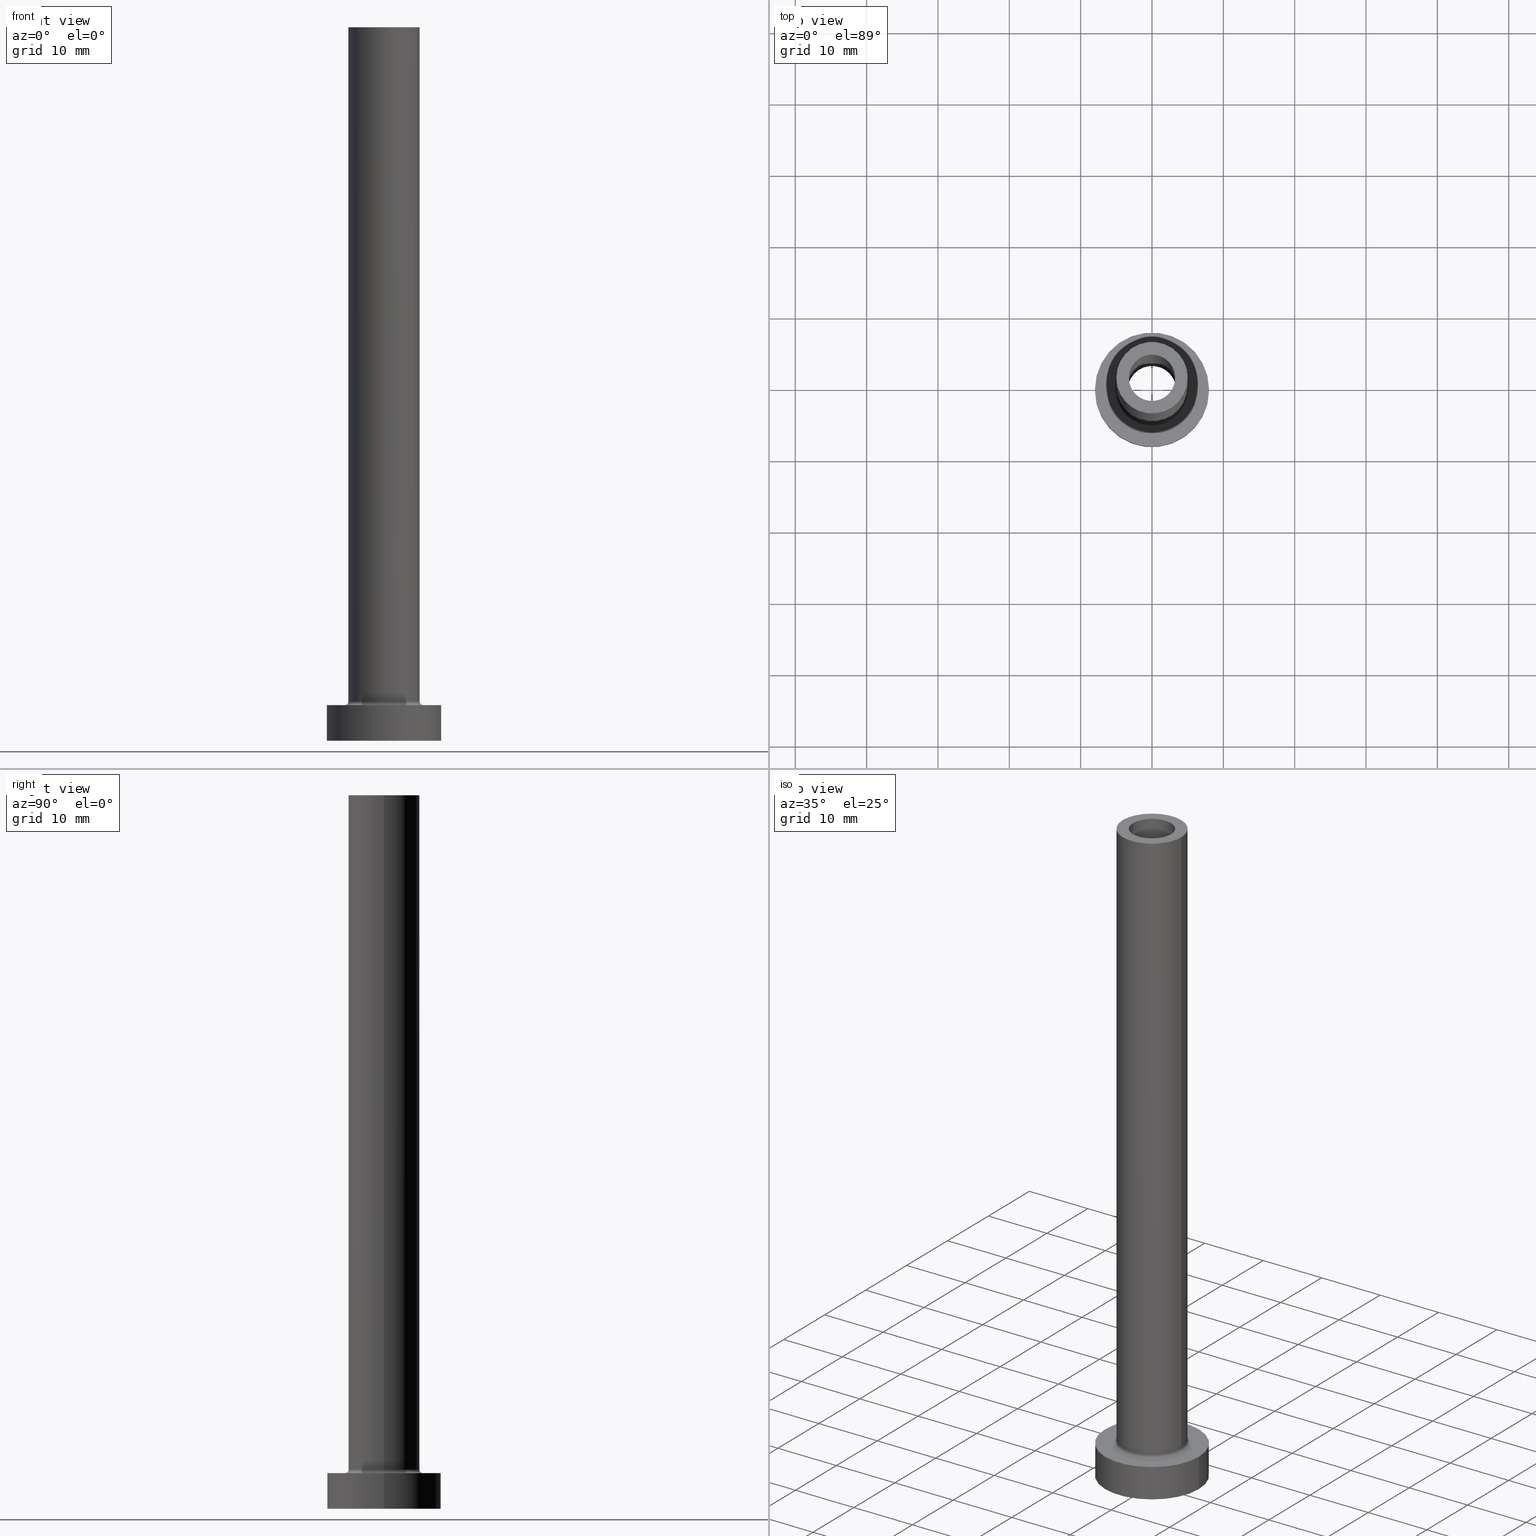
[diagram: canonical four-view strip — front | top / right | iso, engineering-drawing reading convention]
A machine part, canonical four-view strip (front | top / right | iso — engineering-drawing reading convention). The complete STEP part file that produces these views, byte-faithful:
ISO-10303-21;
HEADER;
FILE_DESCRIPTION (( 'STEP AP203' ),
    '1' );
FILE_NAME ('4aac.STEP',
    '2023-02-13T14:03:45',
    ( '' ),
    ( '' ),
    'SwSTEP 2.0',
    'SolidWorks 2019',
    '' );
FILE_SCHEMA (( 'CONFIG_CONTROL_DESIGN' ));
ENDSEC;

DATA;
#1 = APPROVAL ( #149, 'NEUR�EN�' ) ;
#2 = CARTESIAN_POINT ( 'NONE',  ( 0.000000000000000000, 0.000000000000000000, 100.0000000000000000 ) ) ;
#3 = CIRCLE ( 'NONE', #12, 3.399999999999999911 ) ;
#4 = VERTEX_POINT ( 'NONE', #99 ) ;
#5 = FACE_OUTER_BOUND ( 'NONE', #219, .T. ) ;
#6 = EDGE_LOOP ( 'NONE', ( #211, #337, #96, #348 ) ) ;
#7 = COORDINATED_UNIVERSAL_TIME_OFFSET ( 1, 0, .AHEAD. ) ;
#8 = DIRECTION ( 'NONE',  ( 0.000000000000000000, 0.000000000000000000, 1.000000000000000000 ) ) ;
#9 = CARTESIAN_POINT ( 'NONE',  ( 0.000000000000000000, 0.000000000000000000, 0.000000000000000000 ) ) ;
#10 =( LENGTH_UNIT ( ) NAMED_UNIT ( * ) SI_UNIT ( .MILLI., .METRE. ) );
#11 = DIRECTION ( 'NONE',  ( 1.000000000000000000, 0.000000000000000000, 0.000000000000000000 ) ) ;
#12 = AXIS2_PLACEMENT_3D ( 'NONE', #401, #82, #189 ) ;
#13 = ADVANCED_FACE ( 'NONE', ( #172 ), #40, .F. ) ;
#14 = LINE ( 'NONE', #58, #351 ) ;
#15 = CARTESIAN_POINT ( 'NONE',  ( 0.000000000000000000, 0.000000000000000000, 5.500000000000005329 ) ) ;
#16 = VERTEX_POINT ( 'NONE', #456 ) ;
#17 = PERSON_AND_ORGANIZATION_ROLE ( 'design_owner' ) ;
#18 = CARTESIAN_POINT ( 'NONE',  ( 0.000000000000000000, 0.000000000000000000, 5.000000000000000000 ) ) ;
#19 = ORIENTED_EDGE ( 'NONE', *, *, #460, .F. ) ;
#20 = CARTESIAN_POINT ( 'NONE',  ( 3.250000000000000444, 3.980102097228897245E-16, 100.0000000000000000 ) ) ;
#21 = ADVANCED_FACE ( 'NONE', ( #37 ), #383, .T. ) ;
#22 = VERTEX_POINT ( 'NONE', #244 ) ;
#23 = CIRCLE ( 'NONE', #83, 3.250000000000000444 ) ;
#24 = FACE_OUTER_BOUND ( 'NONE', #318, .T. ) ;
#25 = APPROVAL_STATUS ( 'not_yet_approved' ) ;
#26 = PRODUCT ( '4aac', '4aac', '', ( #79 ) ) ;
#27 = EDGE_CURVE ( 'NONE', #43, #331, #154, .T. ) ;
#28 = CC_DESIGN_PERSON_AND_ORGANIZATION_ASSIGNMENT ( #151, #226, ( #38 ) ) ;
#29 = CIRCLE ( 'NONE', #422, 8.000000000000000000 ) ;
#30 = ORIENTED_EDGE ( 'NONE', *, *, #369, .T. ) ;
#31 = DIRECTION ( 'NONE',  ( 1.000000000000000000, 0.000000000000000000, -0.000000000000000000 ) ) ;
#32 = DIRECTION ( 'NONE',  ( -1.000000000000000000, 0.000000000000000000, 0.000000000000000000 ) ) ;
#33 = CARTESIAN_POINT ( 'NONE',  ( 0.000000000000000000, 0.000000000000000000, 100.0000000000000000 ) ) ;
#34 = ADVANCED_FACE ( 'NONE', ( #218 ), #325, .F. ) ;
#35 = DIRECTION ( 'NONE',  ( 0.000000000000000000, 0.000000000000000000, 1.000000000000000000 ) ) ;
#36 = DIRECTION ( 'NONE',  ( 0.000000000000000000, 0.000000000000000000, 1.000000000000000000 ) ) ;
#37 = FACE_OUTER_BOUND ( 'NONE', #416, .T. ) ;
#38 = PRODUCT_DEFINITION ( 'NEZN�M�', '', #67, #273 ) ;
#39 = CARTESIAN_POINT ( 'NONE',  ( 0.000000000000000000, 0.000000000000000000, 100.0000000000000000 ) ) ;
#40 = CYLINDRICAL_SURFACE ( 'NONE', #233, 3.399999999999999911 ) ;
#41 = DIRECTION ( 'NONE',  ( 1.000000000000000000, 0.000000000000000000, 0.000000000000000000 ) ) ;
#42 = ORIENTED_EDGE ( 'NONE', *, *, #62, .F. ) ;
#43 = VERTEX_POINT ( 'NONE', #296 ) ;
#44 = DIRECTION ( 'NONE',  ( 0.000000000000000000, 0.000000000000000000, -1.000000000000000000 ) ) ;
#45 = ORIENTED_EDGE ( 'NONE', *, *, #27, .T. ) ;
#46 = CARTESIAN_POINT ( 'NONE',  ( 0.000000000000000000, 0.000000000000000000, 5.000000000000000000 ) ) ;
#47 = DIRECTION ( 'NONE',  ( 1.000000000000000000, 0.000000000000000000, 0.000000000000000000 ) ) ;
#48 = ADVANCED_FACE ( 'NONE', ( #247, #186 ), #330, .F. ) ;
#49 = CIRCLE ( 'NONE', #108, 8.000000000000000000 ) ;
#50 = DIRECTION ( 'NONE',  ( 0.000000000000000000, 0.000000000000000000, 1.000000000000000000 ) ) ;
#51 = CC_DESIGN_DATE_AND_TIME_ASSIGNMENT ( #424, #105, ( #38 ) ) ;
#52 = ORIENTED_EDGE ( 'NONE', *, *, #236, .F. ) ;
#53 = AXIS2_PLACEMENT_3D ( 'NONE', #161, #374, #11 ) ;
#54 = CARTESIAN_POINT ( 'NONE',  ( -3.250000000000000444, 0.000000000000000000, 55.00000000000000711 ) ) ;
#55 = LINE ( 'NONE', #439, #395 ) ;
#56 = ORIENTED_EDGE ( 'NONE', *, *, #107, .T. ) ;
#57 = EDGE_CURVE ( 'NONE', #310, #231, #49, .T. ) ;
#58 = CARTESIAN_POINT ( 'NONE',  ( -8.000000000000000000, 0.000000000000000000, 5.000000000000000000 ) ) ;
#59 = ORIENTED_EDGE ( 'NONE', *, *, #27, .F. ) ;
#60 = CC_DESIGN_PERSON_AND_ORGANIZATION_ASSIGNMENT ( #125, #234, ( #67 ) ) ;
#61 = AXIS2_PLACEMENT_3D ( 'NONE', #251, #140, #285 ) ;
#62 = EDGE_CURVE ( 'NONE', #163, #379, #81, .T. ) ;
#63 = ORIENTED_EDGE ( 'NONE', *, *, #57, .F. ) ;
#64 = DIRECTION ( 'NONE',  ( 0.000000000000000000, 0.000000000000000000, -1.000000000000000000 ) ) ;
#65 = APPROVAL_DATE_TIME ( #268, #202 ) ;
#66 = ORIENTED_EDGE ( 'NONE', *, *, #378, .F. ) ;
#67 = PRODUCT_DEFINITION_FORMATION_WITH_SPECIFIED_SOURCE ( 'LIBOVOLN�', '', #26, .NOT_KNOWN. ) ;
#68 = CARTESIAN_POINT ( 'NONE',  ( 0.000000000000000000, 0.000000000000000000, 100.0000000000000000 ) ) ;
#69 = AXIS2_PLACEMENT_3D ( 'NONE', #15, #326, #259 ) ;
#70 = DIRECTION ( 'NONE',  ( 0.000000000000000000, 0.000000000000000000, -1.000000000000000000 ) ) ;
#71 = CARTESIAN_POINT ( 'NONE',  ( 0.000000000000000000, 0.000000000000000000, 55.00000000000000711 ) ) ;
#72 = AXIS2_PLACEMENT_3D ( 'NONE', #297, #256, #191 ) ;
#73 = DIRECTION ( 'NONE',  ( 1.000000000000000000, 0.000000000000000000, 0.000000000000000000 ) ) ;
#74 = DIRECTION ( 'NONE',  ( -1.000000000000000000, 0.000000000000000000, 0.000000000000000000 ) ) ;
#75 = VERTEX_POINT ( 'NONE', #408 ) ;
#76 = CARTESIAN_POINT ( 'NONE',  ( 0.000000000000000000, 0.000000000000000000, 5.000000000000000000 ) ) ;
#77 = APPROVAL_STATUS ( 'not_yet_approved' ) ;
#78 = DIRECTION ( 'NONE',  ( -1.000000000000000000, 0.000000000000000000, 0.000000000000000000 ) ) ;
#79 = MECHANICAL_CONTEXT ( 'NONE', #223, 'mechanical' ) ;
#80 = CC_DESIGN_PERSON_AND_ORGANIZATION_ASSIGNMENT ( #338, #17, ( #26 ) ) ;
#81 = LINE ( 'NONE', #367, #155 ) ;
#82 = DIRECTION ( 'NONE',  ( -0.000000000000000000, -0.000000000000000000, -1.000000000000000000 ) ) ;
#83 = AXIS2_PLACEMENT_3D ( 'NONE', #390, #35, #73 ) ;
#84 = ORIENTED_EDGE ( 'NONE', *, *, #62, .T. ) ;
#85 = AXIS2_PLACEMENT_3D ( 'NONE', #366, #50, #311 ) ;
#86 = APPROVAL_DATE_TIME ( #184, #1 ) ;
#87 = CARTESIAN_POINT ( 'NONE',  ( 0.000000000000000000, 0.000000000000000000, 64.61665222413705578 ) ) ;
#88 = DIRECTION ( 'NONE',  ( 1.000000000000000000, 0.000000000000000000, 0.000000000000000000 ) ) ;
#89 = ORIENTED_EDGE ( 'NONE', *, *, #426, .F. ) ;
#90 = PERSON_AND_ORGANIZATION_ROLE ( 'classification_officer' ) ;
#91 = CC_DESIGN_APPROVAL ( #455, ( #67 ) ) ;
#92 = FACE_BOUND ( 'NONE', #195, .T. ) ;
#93 = CARTESIAN_POINT ( 'NONE',  ( 5.500000000000000000, 0.000000000000000000, 5.000000000000002665 ) ) ;
#94 = PERSON_AND_ORGANIZATION ( #237, #457 ) ;
#95 = CYLINDRICAL_SURFACE ( 'NONE', #252, 8.000000000000000000 ) ;
#96 = ORIENTED_EDGE ( 'NONE', *, *, #360, .T. ) ;
#97 = ORIENTED_EDGE ( 'NONE', *, *, #107, .F. ) ;
#98 = ORIENTED_EDGE ( 'NONE', *, *, #134, .T. ) ;
#99 = CARTESIAN_POINT ( 'NONE',  ( -5.000000000000000000, 0.000000000000000000, 100.0000000000000000 ) ) ;
#100 = ADVANCED_FACE ( 'NONE', ( #92, #315 ), #412, .T. ) ;
#101 = AXIS2_PLACEMENT_3D ( 'NONE', #18, #309, #119 ) ;
#102 = AXIS2_PLACEMENT_3D ( 'NONE', #113, #162, #222 ) ;
#103 = CARTESIAN_POINT ( 'NONE',  ( 0.000000000000000000, 0.000000000000000000, 55.00000000000000711 ) ) ;
#104 = ORIENTED_EDGE ( 'NONE', *, *, #423, .T. ) ;
#105 = DATE_TIME_ROLE ( 'creation_date' ) ;
#106 = ORIENTED_EDGE ( 'NONE', *, *, #207, .F. ) ;
#107 = EDGE_CURVE ( 'NONE', #231, #310, #144, .T. ) ;
#108 = AXIS2_PLACEMENT_3D ( 'NONE', #431, #111, #398 ) ;
#109 = CARTESIAN_POINT ( 'NONE',  ( -3.250000000000000444, 0.000000000000000000, 100.0000000000000000 ) ) ;
#110 = TOROIDAL_SURFACE ( 'NONE', #190, 5.500000000000000000, 0.5000000000000000000 ) ;
#111 = DIRECTION ( 'NONE',  ( 0.000000000000000000, 0.000000000000000000, 1.000000000000000000 ) ) ;
#112 = APPLICATION_PROTOCOL_DEFINITION ( 'international standard', 'config_control_design', 1994, #223 ) ;
#113 = CARTESIAN_POINT ( 'NONE',  ( 0.000000000000000000, 0.000000000000000000, 55.00000000000000711 ) ) ;
#114 = EDGE_CURVE ( 'NONE', #4, #43, #228, .T. ) ;
#115 = APPLICATION_CONTEXT ( 'configuration controlled 3d designs of mechanical parts and assemblies' ) ;
#116 = APPROVAL_ROLE ( '' ) ;
#117 = AXIS2_PLACEMENT_3D ( 'NONE', #194, #266, #88 ) ;
#118 = CARTESIAN_POINT ( 'NONE',  ( 0.000000000000000000, 0.000000000000000000, 55.00000000000000711 ) ) ;
#119 = DIRECTION ( 'NONE',  ( 1.000000000000000000, 0.000000000000000000, -0.000000000000000000 ) ) ;
#120 = CIRCLE ( 'NONE', #217, 0.5000000000000004441 ) ;
#121 = CIRCLE ( 'NONE', #53, 5.000000000000000000 ) ;
#122 = DATE_AND_TIME ( #347, #450 ) ;
#123 = CARTESIAN_POINT ( 'NONE',  ( 5.000000000000000000, 6.123233995736766282E-16, 5.500000000000005329 ) ) ;
#124 = ORIENTED_EDGE ( 'NONE', *, *, #393, .T. ) ;
#125 = PERSON_AND_ORGANIZATION ( #237, #457 ) ;
#126 = FACE_OUTER_BOUND ( 'NONE', #188, .T. ) ;
#127 = CALENDAR_DATE ( 2023, 13, 2 ) ;
#128 = EDGE_CURVE ( 'NONE', #323, #375, #402, .T. ) ;
#129 = DATE_AND_TIME ( #445, #336 ) ;
#130 = AXIS2_PLACEMENT_3D ( 'NONE', #39, #355, #173 ) ;
#131 = FACE_BOUND ( 'NONE', #444, .T. ) ;
#132 = APPROVAL_ROLE ( '' ) ;
#133 = DIRECTION ( 'NONE',  ( 0.000000000000000000, 0.000000000000000000, 1.000000000000000000 ) ) ;
#134 = EDGE_CURVE ( 'NONE', #163, #203, #238, .T. ) ;
#135 = ADVANCED_FACE ( 'NONE', ( #385 ), #358, .F. ) ;
#136 = VECTOR ( 'NONE', #175, 1000.000000000000000 ) ;
#137 = CARTESIAN_POINT ( 'NONE',  ( 0.000000000000000000, 0.000000000000000000, 55.00000000000000711 ) ) ;
#138 = CIRCLE ( 'NONE', #212, 0.5000000000000004441 ) ;
#139 = CARTESIAN_POINT ( 'NONE',  ( 0.000000000000000000, 0.000000000000000000, 0.000000000000000000 ) ) ;
#140 = DIRECTION ( 'NONE',  ( -0.000000000000000000, -0.000000000000000000, -1.000000000000000000 ) ) ;
#141 = DIRECTION ( 'NONE',  ( 0.000000000000000000, 0.000000000000000000, -1.000000000000000000 ) ) ;
#142 = DIRECTION ( 'NONE',  ( -1.000000000000000000, 0.000000000000000000, 0.000000000000000000 ) ) ;
#143 = MANIFOLD_SOLID_BREP ( 'Odebrat vysunut�m4', #196 ) ;
#144 = CIRCLE ( 'NONE', #117, 8.000000000000000000 ) ;
#145 = DIRECTION ( 'NONE',  ( 0.000000000000000000, 0.000000000000000000, 1.000000000000000000 ) ) ;
#146 = CIRCLE ( 'NONE', #389, 8.000000000000000000 ) ;
#147 = CARTESIAN_POINT ( 'NONE',  ( 0.000000000000000000, 0.000000000000000000, 5.500000000000005329 ) ) ;
#148 = EDGE_LOOP ( 'NONE', ( #157, #400, #352, #372 ) ) ;
#149 = APPROVAL_STATUS ( 'not_yet_approved' ) ;
#150 = EDGE_CURVE ( 'NONE', #409, #22, #23, .T. ) ;
#151 = PERSON_AND_ORGANIZATION ( #237, #457 ) ;
#152 = DIRECTION ( 'NONE',  ( 1.000000000000000000, 0.000000000000000000, 0.000000000000000000 ) ) ;
#153 = DIRECTION ( 'NONE',  ( 0.000000000000000000, 0.000000000000000000, 1.000000000000000000 ) ) ;
#154 = CIRCLE ( 'NONE', #69, 5.000000000000000000 ) ;
#155 = VECTOR ( 'NONE', #64, 1000.000000000000000 ) ;
#156 = FACE_OUTER_BOUND ( 'NONE', #362, .T. ) ;
#157 = ORIENTED_EDGE ( 'NONE', *, *, #150, .T. ) ;
#158 = CARTESIAN_POINT ( 'NONE',  ( -5.500000000000000000, 6.735557395310442023E-16, 5.000000000000002665 ) ) ;
#159 = CARTESIAN_POINT ( 'NONE',  ( -3.399999999999999911, 0.000000000000000000, 55.00000000000000711 ) ) ;
#160 = VERTEX_POINT ( 'NONE', #280 ) ;
#161 = CARTESIAN_POINT ( 'NONE',  ( 0.000000000000000000, 0.000000000000000000, 100.0000000000000000 ) ) ;
#162 = DIRECTION ( 'NONE',  ( 0.000000000000000000, 0.000000000000000000, 1.000000000000000000 ) ) ;
#163 = VERTEX_POINT ( 'NONE', #159 ) ;
#164 = EDGE_CURVE ( 'NONE', #75, #331, #55, .T. ) ;
#165 = ADVANCED_FACE ( 'NONE', ( #443 ), #171, .F. ) ;
#166 = PERSON_AND_ORGANIZATION_ROLE ( 'design_supplier' ) ;
#167 = ORIENTED_EDGE ( 'NONE', *, *, #207, .T. ) ;
#168 = CC_DESIGN_APPROVAL ( #202, ( #245 ) ) ;
#169 = DIRECTION ( 'NONE',  ( -0.000000000000000000, -0.000000000000000000, -1.000000000000000000 ) ) ;
#170 = ADVANCED_FACE ( 'NONE', ( #131, #24 ), #454, .T. ) ;
#171 = CYLINDRICAL_SURFACE ( 'NONE', #377, 3.250000000000000444 ) ;
#172 = FACE_OUTER_BOUND ( 'NONE', #436, .T. ) ;
#173 = DIRECTION ( 'NONE',  ( 1.000000000000000000, 0.000000000000000000, 0.000000000000000000 ) ) ;
#174 = CC_DESIGN_SECURITY_CLASSIFICATION ( #245, ( #67 ) ) ;
#175 = DIRECTION ( 'NONE',  ( -0.000000000000000000, -0.000000000000000000, -1.000000000000000000 ) ) ;
#176 = DIRECTION ( 'NONE',  ( -0.000000000000000000, -0.000000000000000000, -1.000000000000000000 ) ) ;
#177 = ADVANCED_FACE ( 'NONE', ( #319 ), #110, .F. ) ;
#178 = ORIENTED_EDGE ( 'NONE', *, *, #301, .F. ) ;
#179 = DIRECTION ( 'NONE',  ( 0.000000000000000000, 0.000000000000000000, 1.000000000000000000 ) ) ;
#180 = ORIENTED_EDGE ( 'NONE', *, *, #360, .F. ) ;
#181 = CARTESIAN_POINT ( 'NONE',  ( -5.500000000000000000, 6.735557395310442023E-16, 5.500000000000005329 ) ) ;
#182 = AXIS2_PLACEMENT_3D ( 'NONE', #76, #288, #295 ) ;
#183 = EDGE_LOOP ( 'NONE', ( #304, #56 ) ) ;
#184 = DATE_AND_TIME ( #262, #316 ) ;
#185 = CARTESIAN_POINT ( 'NONE',  ( 0.000000000000000000, 0.000000000000000000, 0.000000000000000000 ) ) ;
#186 = FACE_OUTER_BOUND ( 'NONE', #384, .T. ) ;
#187 = VERTEX_POINT ( 'NONE', #93 ) ;
#188 = EDGE_LOOP ( 'NONE', ( #106, #63, #271, #104 ) ) ;
#189 = DIRECTION ( 'NONE',  ( 1.000000000000000000, 0.000000000000000000, 0.000000000000000000 ) ) ;
#190 = AXIS2_PLACEMENT_3D ( 'NONE', #349, #133, #279 ) ;
#191 = DIRECTION ( 'NONE',  ( 1.000000000000000000, 0.000000000000000000, 0.000000000000000000 ) ) ;
#192 = DIRECTION ( 'NONE',  ( -0.000000000000000000, -0.000000000000000000, -1.000000000000000000 ) ) ;
#193 = DIRECTION ( 'NONE',  ( -0.000000000000000000, -0.000000000000000000, -1.000000000000000000 ) ) ;
#194 = CARTESIAN_POINT ( 'NONE',  ( 0.000000000000000000, 0.000000000000000000, 5.000000000000000000 ) ) ;
#195 = EDGE_LOOP ( 'NONE', ( #260, #380 ) ) ;
#196 = CLOSED_SHELL ( 'NONE', ( #135, #407, #177, #230, #258, #197, #100, #48, #21, #170, #34, #13, #275, #165 ) ) ;
#197 = ADVANCED_FACE ( 'NONE', ( #126 ), #95, .T. ) ;
#198 = AXIS2_PLACEMENT_3D ( 'NONE', #71, #213, #209 ) ;
#199 = LOCAL_TIME ( 15, 3, 45.00000000000000000, #342 ) ;
#200 = AXIS2_PLACEMENT_3D ( 'NONE', #46, #261, #399 ) ;
#201 = SECURITY_CLASSIFICATION_LEVEL ( 'unclassified' ) ;
#202 = APPROVAL ( #25, 'NEUR�EN�' ) ;
#203 = VERTEX_POINT ( 'NONE', #284 ) ;
#204 = EDGE_CURVE ( 'NONE', #75, #4, #404, .T. ) ;
#205 = APPROVAL_DATE_TIME ( #129, #455 ) ;
#206 = CIRCLE ( 'NONE', #200, 5.500000000000000000 ) ;
#207 = EDGE_CURVE ( 'NONE', #231, #16, #363, .T. ) ;
#208 = DIRECTION ( 'NONE',  ( 1.000000000000000000, 0.000000000000000000, 0.000000000000000000 ) ) ;
#209 = DIRECTION ( 'NONE',  ( 1.000000000000000000, 0.000000000000000000, -0.000000000000000000 ) ) ;
#210 = ORIENTED_EDGE ( 'NONE', *, *, #419, .F. ) ;
#211 = ORIENTED_EDGE ( 'NONE', *, *, #204, .F. ) ;
#212 = AXIS2_PLACEMENT_3D ( 'NONE', #435, #257, #305 ) ;
#213 = DIRECTION ( 'NONE',  ( 0.000000000000000000, 0.000000000000000000, 1.000000000000000000 ) ) ;
#214 = ORIENTED_EDGE ( 'NONE', *, *, #369, .F. ) ;
#215 = FACE_BOUND ( 'NONE', #418, .T. ) ;
#216 = APPROVAL_ROLE ( '' ) ;
#217 = AXIS2_PLACEMENT_3D ( 'NONE', #181, #324, #243 ) ;
#218 = FACE_OUTER_BOUND ( 'NONE', #364, .T. ) ;
#219 = EDGE_LOOP ( 'NONE', ( #97, #167, #438, #432 ) ) ;
#220 = ORIENTED_EDGE ( 'NONE', *, *, #236, .T. ) ;
#221 = CARTESIAN_POINT ( 'NONE',  ( -3.250000000000000444, 0.000000000000000000, 100.0000000000000000 ) ) ;
#222 = DIRECTION ( 'NONE',  ( 1.000000000000000000, 0.000000000000000000, 0.000000000000000000 ) ) ;
#223 = APPLICATION_CONTEXT ( 'configuration controlled 3d designs of mechanical parts and assemblies' ) ;
#224 = AXIS2_PLACEMENT_3D ( 'NONE', #118, #308, #370 ) ;
#225 = ORIENTED_EDGE ( 'NONE', *, *, #426, .T. ) ;
#226 = PERSON_AND_ORGANIZATION_ROLE ( 'creator' ) ;
#227 = DIRECTION ( 'NONE',  ( 0.000000000000000000, 0.000000000000000000, -1.000000000000000000 ) ) ;
#228 = LINE ( 'NONE', #344, #440 ) ;
#229 = DATE_TIME_ROLE ( 'classification_date' ) ;
#230 = ADVANCED_FACE ( 'NONE', ( #291 ), #246, .T. ) ;
#231 = VERTEX_POINT ( 'NONE', #391 ) ;
#232 = UNCERTAINTY_MEASURE_WITH_UNIT (LENGTH_MEASURE( 1.000000000000000082E-05 ), #10, 'distance_accuracy_value', 'NONE');
#233 = AXIS2_PLACEMENT_3D ( 'NONE', #386, #70, #286 ) ;
#234 = PERSON_AND_ORGANIZATION_ROLE ( 'creator' ) ;
#235 = ORIENTED_EDGE ( 'NONE', *, *, #393, .F. ) ;
#236 = EDGE_CURVE ( 'NONE', #43, #447, #120, .T. ) ;
#237 = PERSON ( 'NEUR�EN�', 'NEUR�EN�', 'NEUR�EN�', ('NEUR�EN�'), ('NEUR�EN�'), ('NEUR�EN�') ) ;
#238 = CIRCLE ( 'NONE', #302, 3.399999999999999911 ) ;
#239 = EDGE_LOOP ( 'NONE', ( #210, #368, #392, #314 ) ) ;
#240 =( GEOMETRIC_REPRESENTATION_CONTEXT ( 3 ) GLOBAL_UNCERTAINTY_ASSIGNED_CONTEXT ( ( #232 ) ) GLOBAL_UNIT_ASSIGNED_CONTEXT ( ( #10, #428, #250 ) ) REPRESENTATION_CONTEXT ( 'NONE', 'WORKASPACE' ) );
#241 = DIRECTION ( 'NONE',  ( 1.000000000000000000, 0.000000000000000000, 0.000000000000000000 ) ) ;
#242 = CARTESIAN_POINT ( 'NONE',  ( 0.000000000000000000, 0.000000000000000000, 5.000000000000000000 ) ) ;
#243 = DIRECTION ( 'NONE',  ( -1.000000000000000000, 1.224646799147351482E-16, 0.000000000000000000 ) ) ;
#244 = CARTESIAN_POINT ( 'NONE',  ( 3.250000000000000444, 3.980102097228897245E-16, 100.0000000000000000 ) ) ;
#245 = SECURITY_CLASSIFICATION ( '', '', #201 ) ;
#246 = CYLINDRICAL_SURFACE ( 'NONE', #414, 5.000000000000000000 ) ;
#247 = FACE_BOUND ( 'NONE', #267, .T. ) ;
#248 = EDGE_CURVE ( 'NONE', #187, #447, #382, .T. ) ;
#249 = ORIENTED_EDGE ( 'NONE', *, *, #204, .T. ) ;
#250 =( NAMED_UNIT ( * ) SI_UNIT ( $, .STERADIAN. ) SOLID_ANGLE_UNIT ( ) );
#251 = CARTESIAN_POINT ( 'NONE',  ( 0.000000000000000000, 0.000000000000000000, 5.000000000000000000 ) ) ;
#252 = AXIS2_PLACEMENT_3D ( 'NONE', #242, #359, #74 ) ;
#253 = DIRECTION ( 'NONE',  ( 0.000000000000000000, 0.000000000000000000, -1.000000000000000000 ) ) ;
#254 = APPROVAL_PERSON_ORGANIZATION ( #373, #1, #116 ) ;
#255 = ORIENTED_EDGE ( 'NONE', *, *, #423, .F. ) ;
#256 = DIRECTION ( 'NONE',  ( 0.000000000000000000, 0.000000000000000000, 1.000000000000000000 ) ) ;
#257 = DIRECTION ( 'NONE',  ( 0.000000000000000000, -1.000000000000000000, 0.000000000000000000 ) ) ;
#258 = ADVANCED_FACE ( 'NONE', ( #5 ), #461, .T. ) ;
#259 = DIRECTION ( 'NONE',  ( 1.000000000000000000, 0.000000000000000000, 0.000000000000000000 ) ) ;
#260 = ORIENTED_EDGE ( 'NONE', *, *, #248, .T. ) ;
#261 = DIRECTION ( 'NONE',  ( -0.000000000000000000, -0.000000000000000000, -1.000000000000000000 ) ) ;
#262 = CALENDAR_DATE ( 2023, 13, 2 ) ;
#263 = CARTESIAN_POINT ( 'NONE',  ( 3.250000000000000444, 3.980102097228897245E-16, 55.00000000000000711 ) ) ;
#264 = AXIS2_PLACEMENT_3D ( 'NONE', #33, #36, #41 ) ;
#265 = DIRECTION ( 'NONE',  ( -0.000000000000000000, -0.000000000000000000, -1.000000000000000000 ) ) ;
#266 = DIRECTION ( 'NONE',  ( 0.000000000000000000, 0.000000000000000000, 1.000000000000000000 ) ) ;
#267 = EDGE_LOOP ( 'NONE', ( #214, #66 ) ) ;
#268 = DATE_AND_TIME ( #127, #283 ) ;
#269 = CYLINDRICAL_SURFACE ( 'NONE', #415, 3.399999999999999911 ) ;
#270 = PRODUCT_DEFINITION_SHAPE ( 'NONE', 'NONE',  #38 ) ;
#271 = ORIENTED_EDGE ( 'NONE', *, *, #413, .T. ) ;
#272 = ORIENTED_EDGE ( 'NONE', *, *, #164, .F. ) ;
#273 = DESIGN_CONTEXT ( 'detailed design', #115, 'design' ) ;
#274 = SHAPE_DEFINITION_REPRESENTATION ( #270, #421 ) ;
#275 = ADVANCED_FACE ( 'NONE', ( #215, #388 ), #420, .F. ) ;
#276 = CIRCLE ( 'NONE', #102, 3.250000000000000444 ) ;
#277 = ORIENTED_EDGE ( 'NONE', *, *, #150, .F. ) ;
#278 = COORDINATED_UNIVERSAL_TIME_OFFSET ( 1, 0, .AHEAD. ) ;
#279 = DIRECTION ( 'NONE',  ( 1.000000000000000000, 0.000000000000000000, 0.000000000000000000 ) ) ;
#280 = CARTESIAN_POINT ( 'NONE',  ( -8.000000000000000000, 0.000000000000000000, 0.000000000000000000 ) ) ;
#281 = DIRECTION ( 'NONE',  ( 0.000000000000000000, 0.000000000000000000, 1.000000000000000000 ) ) ;
#282 = ORIENTED_EDGE ( 'NONE', *, *, #114, .T. ) ;
#283 = LOCAL_TIME ( 15, 3, 45.00000000000000000, #278 ) ;
#284 = CARTESIAN_POINT ( 'NONE',  ( 3.399999999999999911, 4.163799117101000559E-16, 55.00000000000000711 ) ) ;
#285 = DIRECTION ( 'NONE',  ( -1.000000000000000000, 0.000000000000000000, 0.000000000000000000 ) ) ;
#286 = DIRECTION ( 'NONE',  ( -1.000000000000000000, 0.000000000000000000, 0.000000000000000000 ) ) ;
#287 = DIRECTION ( 'NONE',  ( -1.000000000000000000, 0.000000000000000000, 0.000000000000000000 ) ) ;
#288 = DIRECTION ( 'NONE',  ( -0.000000000000000000, -0.000000000000000000, -1.000000000000000000 ) ) ;
#289 = EDGE_CURVE ( 'NONE', #22, #409, #321, .T. ) ;
#290 = CIRCLE ( 'NONE', #85, 5.000000000000000000 ) ;
#291 = FACE_OUTER_BOUND ( 'NONE', #6, .T. ) ;
#292 = DIRECTION ( 'NONE',  ( 0.000000000000000000, 0.000000000000000000, 1.000000000000000000 ) ) ;
#293 = ORIENTED_EDGE ( 'NONE', *, *, #248, .F. ) ;
#294 = CALENDAR_DATE ( 2023, 13, 2 ) ;
#295 = DIRECTION ( 'NONE',  ( 1.000000000000000000, 0.000000000000000000, 0.000000000000000000 ) ) ;
#296 = CARTESIAN_POINT ( 'NONE',  ( -5.000000000000000000, 0.000000000000000000, 5.500000000000005329 ) ) ;
#297 = CARTESIAN_POINT ( 'NONE',  ( 0.000000000000000000, 0.000000000000000000, 0.000000000000000000 ) ) ;
#298 = LINE ( 'NONE', #430, #406 ) ;
#299 = AXIS2_PLACEMENT_3D ( 'NONE', #68, #176, #32 ) ;
#300 = DIRECTION ( 'NONE',  ( 1.000000000000000000, 0.000000000000000000, -0.000000000000000000 ) ) ;
#301 = EDGE_CURVE ( 'NONE', #16, #160, #29, .T. ) ;
#302 = AXIS2_PLACEMENT_3D ( 'NONE', #137, #281, #241 ) ;
#303 = CIRCLE ( 'NONE', #396, 3.399999999999999911 ) ;
#304 = ORIENTED_EDGE ( 'NONE', *, *, #57, .T. ) ;
#305 = DIRECTION ( 'NONE',  ( 0.000000000000000000, 0.000000000000000000, -1.000000000000000000 ) ) ;
#306 = ORIENTED_EDGE ( 'NONE', *, *, #378, .T. ) ;
#307 = APPLICATION_PROTOCOL_DEFINITION ( 'international standard', 'config_control_design', 1994, #115 ) ;
#308 = DIRECTION ( 'NONE',  ( 0.000000000000000000, 0.000000000000000000, 1.000000000000000000 ) ) ;
#309 = DIRECTION ( 'NONE',  ( 0.000000000000000000, 0.000000000000000000, 1.000000000000000000 ) ) ;
#310 = VERTEX_POINT ( 'NONE', #335 ) ;
#311 = DIRECTION ( 'NONE',  ( 1.000000000000000000, 0.000000000000000000, 0.000000000000000000 ) ) ;
#312 = PRODUCT_RELATED_PRODUCT_CATEGORY ( 'detail', '', ( #26 ) ) ;
#313 = DIRECTION ( 'NONE',  ( -1.000000000000000000, 0.000000000000000000, 0.000000000000000000 ) ) ;
#314 = ORIENTED_EDGE ( 'NONE', *, *, #128, .F. ) ;
#315 = FACE_OUTER_BOUND ( 'NONE', #183, .T. ) ;
#316 = LOCAL_TIME ( 15, 3, 45.00000000000000000, #7 ) ;
#317 = VERTEX_POINT ( 'NONE', #442 ) ;
#318 = EDGE_LOOP ( 'NONE', ( #124, #249 ) ) ;
#319 = FACE_OUTER_BOUND ( 'NONE', #403, .T. ) ;
#320 = EDGE_CURVE ( 'NONE', #203, #163, #411, .T. ) ;
#321 = CIRCLE ( 'NONE', #130, 3.250000000000000444 ) ;
#322 = CARTESIAN_POINT ( 'NONE',  ( 0.000000000000000000, 0.000000000000000000, 100.0000000000000000 ) ) ;
#323 = VERTEX_POINT ( 'NONE', #263 ) ;
#324 = DIRECTION ( 'NONE',  ( 1.224646799147353207E-16, 1.000000000000000000, -0.000000000000000000 ) ) ;
#325 = TOROIDAL_SURFACE ( 'NONE', #429, 5.500000000000000000, 0.5000000000000000000 ) ;
#326 = DIRECTION ( 'NONE',  ( 0.000000000000000000, 0.000000000000000000, 1.000000000000000000 ) ) ;
#327 = ORIENTED_EDGE ( 'NONE', *, *, #339, .T. ) ;
#328 = APPROVAL_PERSON_ORGANIZATION ( #453, #202, #132 ) ;
#329 = ORIENTED_EDGE ( 'NONE', *, *, #320, .F. ) ;
#330 = PLANE ( 'NONE',  #387 ) ;
#331 = VERTEX_POINT ( 'NONE', #123 ) ;
#332 = CARTESIAN_POINT ( 'NONE',  ( 0.000000000000000000, 0.000000000000000000, 0.000000000000000000 ) ) ;
#333 = DIRECTION ( 'NONE',  ( 0.000000000000000000, 0.000000000000000000, -1.000000000000000000 ) ) ;
#334 = AXIS2_PLACEMENT_3D ( 'NONE', #2, #141, #287 ) ;
#335 = CARTESIAN_POINT ( 'NONE',  ( -8.000000000000000000, 0.000000000000000000, 5.000000000000000000 ) ) ;
#336 = LOCAL_TIME ( 15, 3, 45.00000000000000000, #449 ) ;
#337 = ORIENTED_EDGE ( 'NONE', *, *, #164, .T. ) ;
#338 = PERSON_AND_ORGANIZATION ( #237, #457 ) ;
#339 = EDGE_CURVE ( 'NONE', #375, #323, #276, .T. ) ;
#340 = DIRECTION ( 'NONE',  ( 1.000000000000000000, 0.000000000000000000, 0.000000000000000000 ) ) ;
#341 = ORIENTED_EDGE ( 'NONE', *, *, #134, .F. ) ;
#342 = COORDINATED_UNIVERSAL_TIME_OFFSET ( 1, 0, .AHEAD. ) ;
#343 = LINE ( 'NONE', #20, #346 ) ;
#344 = CARTESIAN_POINT ( 'NONE',  ( -5.000000000000000000, 0.000000000000000000, 100.0000000000000000 ) ) ;
#345 = CARTESIAN_POINT ( 'NONE',  ( 0.000000000000000000, 0.000000000000000000, 100.0000000000000000 ) ) ;
#346 = VECTOR ( 'NONE', #44, 1000.000000000000000 ) ;
#347 = CALENDAR_DATE ( 2023, 13, 2 ) ;
#348 = ORIENTED_EDGE ( 'NONE', *, *, #114, .F. ) ;
#349 = CARTESIAN_POINT ( 'NONE',  ( 0.000000000000000000, 0.000000000000000000, 5.500000000000005329 ) ) ;
#350 = AXIS2_PLACEMENT_3D ( 'NONE', #446, #354, #31 ) ;
#351 = VECTOR ( 'NONE', #193, 1000.000000000000000 ) ;
#352 = ORIENTED_EDGE ( 'NONE', *, *, #339, .F. ) ;
#353 = EDGE_CURVE ( 'NONE', #331, #187, #138, .T. ) ;
#354 = DIRECTION ( 'NONE',  ( 0.000000000000000000, 0.000000000000000000, 1.000000000000000000 ) ) ;
#355 = DIRECTION ( 'NONE',  ( 0.000000000000000000, 0.000000000000000000, 1.000000000000000000 ) ) ;
#356 = CC_DESIGN_PERSON_AND_ORGANIZATION_ASSIGNMENT ( #376, #166, ( #67 ) ) ;
#357 = ORIENTED_EDGE ( 'NONE', *, *, #128, .T. ) ;
#358 = CYLINDRICAL_SURFACE ( 'NONE', #334, 3.250000000000000444 ) ;
#359 = DIRECTION ( 'NONE',  ( -0.000000000000000000, -0.000000000000000000, -1.000000000000000000 ) ) ;
#360 = EDGE_CURVE ( 'NONE', #331, #43, #290, .T. ) ;
#361 = CARTESIAN_POINT ( 'NONE',  ( 8.000000000000000000, 9.797174393178825657E-16, 5.000000000000000000 ) ) ;
#362 = EDGE_LOOP ( 'NONE', ( #98, #225, #306, #42 ) ) ;
#363 = LINE ( 'NONE', #361, #136 ) ;
#364 = EDGE_LOOP ( 'NONE', ( #52, #180, #417, #19 ) ) ;
#365 = DIRECTION ( 'NONE',  ( 1.000000000000000000, 0.000000000000000000, 0.000000000000000000 ) ) ;
#366 = CARTESIAN_POINT ( 'NONE',  ( 0.000000000000000000, 0.000000000000000000, 5.500000000000005329 ) ) ;
#367 = CARTESIAN_POINT ( 'NONE',  ( -3.399999999999999911, 0.000000000000000000, 64.61665222413705578 ) ) ;
#368 = ORIENTED_EDGE ( 'NONE', *, *, #289, .T. ) ;
#369 = EDGE_CURVE ( 'NONE', #379, #317, #3, .T. ) ;
#370 = DIRECTION ( 'NONE',  ( 1.000000000000000000, 0.000000000000000000, 0.000000000000000000 ) ) ;
#371 = VECTOR ( 'NONE', #333, 1000.000000000000000 ) ;
#372 = ORIENTED_EDGE ( 'NONE', *, *, #434, .F. ) ;
#373 = PERSON_AND_ORGANIZATION ( #237, #457 ) ;
#374 = DIRECTION ( 'NONE',  ( 0.000000000000000000, 0.000000000000000000, 1.000000000000000000 ) ) ;
#375 = VERTEX_POINT ( 'NONE', #54 ) ;
#376 = PERSON_AND_ORGANIZATION ( #237, #457 ) ;
#377 = AXIS2_PLACEMENT_3D ( 'NONE', #345, #451, #313 ) ;
#378 = EDGE_CURVE ( 'NONE', #317, #379, #303, .T. ) ;
#379 = VERTEX_POINT ( 'NONE', #405 ) ;
#380 = ORIENTED_EDGE ( 'NONE', *, *, #460, .T. ) ;
#381 = AXIS2_PLACEMENT_3D ( 'NONE', #103, #145, #208 ) ;
#382 = CIRCLE ( 'NONE', #182, 5.500000000000000000 ) ;
#383 = CYLINDRICAL_SURFACE ( 'NONE', #299, 5.000000000000000000 ) ;
#384 = EDGE_LOOP ( 'NONE', ( #255, #178 ) ) ;
#385 = FACE_OUTER_BOUND ( 'NONE', #148, .T. ) ;
#386 = CARTESIAN_POINT ( 'NONE',  ( 0.000000000000000000, 0.000000000000000000, 64.61665222413705578 ) ) ;
#387 = AXIS2_PLACEMENT_3D ( 'NONE', #9, #153, #300 ) ;
#388 = FACE_OUTER_BOUND ( 'NONE', #427, .T. ) ;
#389 = AXIS2_PLACEMENT_3D ( 'NONE', #185, #8, #152 ) ;
#390 = CARTESIAN_POINT ( 'NONE',  ( 0.000000000000000000, 0.000000000000000000, 100.0000000000000000 ) ) ;
#391 = CARTESIAN_POINT ( 'NONE',  ( 8.000000000000000000, 9.797174393178825657E-16, 5.000000000000000000 ) ) ;
#392 = ORIENTED_EDGE ( 'NONE', *, *, #434, .T. ) ;
#393 = EDGE_CURVE ( 'NONE', #4, #75, #121, .T. ) ;
#394 = PERSON_AND_ORGANIZATION ( #237, #457 ) ;
#395 = VECTOR ( 'NONE', #265, 1000.000000000000000 ) ;
#396 = AXIS2_PLACEMENT_3D ( 'NONE', #332, #192, #340 ) ;
#397 = LINE ( 'NONE', #221, #371 ) ;
#398 = DIRECTION ( 'NONE',  ( 1.000000000000000000, 0.000000000000000000, 0.000000000000000000 ) ) ;
#399 = DIRECTION ( 'NONE',  ( 1.000000000000000000, 0.000000000000000000, 0.000000000000000000 ) ) ;
#400 = ORIENTED_EDGE ( 'NONE', *, *, #419, .T. ) ;
#401 = CARTESIAN_POINT ( 'NONE',  ( 0.000000000000000000, 0.000000000000000000, 0.000000000000000000 ) ) ;
#402 = CIRCLE ( 'NONE', #381, 3.250000000000000444 ) ;
#403 = EDGE_LOOP ( 'NONE', ( #59, #220, #293, #452 ) ) ;
#404 = CIRCLE ( 'NONE', #264, 5.000000000000000000 ) ;
#405 = CARTESIAN_POINT ( 'NONE',  ( -3.399999999999999911, 0.000000000000000000, 0.000000000000000000 ) ) ;
#406 = VECTOR ( 'NONE', #253, 1000.000000000000000 ) ;
#407 = ADVANCED_FACE ( 'NONE', ( #156 ), #269, .F. ) ;
#408 = CARTESIAN_POINT ( 'NONE',  ( 5.000000000000000000, 6.123233995736766282E-16, 100.0000000000000000 ) ) ;
#409 = VERTEX_POINT ( 'NONE', #109 ) ;
#410 = CC_DESIGN_PERSON_AND_ORGANIZATION_ASSIGNMENT ( #94, #90, ( #245 ) ) ;
#411 = CIRCLE ( 'NONE', #224, 3.399999999999999911 ) ;
#412 = PLANE ( 'NONE',  #101 ) ;
#413 = EDGE_CURVE ( 'NONE', #310, #160, #14, .T. ) ;
#414 = AXIS2_PLACEMENT_3D ( 'NONE', #322, #425, #142 ) ;
#415 = AXIS2_PLACEMENT_3D ( 'NONE', #87, #227, #78 ) ;
#416 = EDGE_LOOP ( 'NONE', ( #272, #235, #282, #45 ) ) ;
#417 = ORIENTED_EDGE ( 'NONE', *, *, #353, .T. ) ;
#418 = EDGE_LOOP ( 'NONE', ( #327, #357 ) ) ;
#419 = EDGE_CURVE ( 'NONE', #22, #323, #343, .T. ) ;
#420 = PLANE ( 'NONE',  #198 ) ;
#421 = ADVANCED_BREP_SHAPE_REPRESENTATION ( '4aac', ( #143, #72 ), #240 ) ;
#422 = AXIS2_PLACEMENT_3D ( 'NONE', #139, #179, #47 ) ;
#423 = EDGE_CURVE ( 'NONE', #160, #16, #146, .T. ) ;
#424 = DATE_AND_TIME ( #294, #199 ) ;
#425 = DIRECTION ( 'NONE',  ( -0.000000000000000000, -0.000000000000000000, -1.000000000000000000 ) ) ;
#426 = EDGE_CURVE ( 'NONE', #203, #317, #298, .T. ) ;
#427 = EDGE_LOOP ( 'NONE', ( #341, #329 ) ) ;
#428 =( NAMED_UNIT ( * ) PLANE_ANGLE_UNIT ( ) SI_UNIT ( $, .RADIAN. ) );
#429 = AXIS2_PLACEMENT_3D ( 'NONE', #147, #292, #365 ) ;
#430 = CARTESIAN_POINT ( 'NONE',  ( 3.399999999999999911, 4.163799117101000559E-16, 64.61665222413705578 ) ) ;
#431 = CARTESIAN_POINT ( 'NONE',  ( 0.000000000000000000, 0.000000000000000000, 5.000000000000000000 ) ) ;
#432 = ORIENTED_EDGE ( 'NONE', *, *, #413, .F. ) ;
#433 = APPROVAL_PERSON_ORGANIZATION ( #394, #455, #216 ) ;
#434 = EDGE_CURVE ( 'NONE', #409, #375, #397, .T. ) ;
#435 = CARTESIAN_POINT ( 'NONE',  ( 5.500000000000000000, 0.000000000000000000, 5.500000000000005329 ) ) ;
#436 = EDGE_LOOP ( 'NONE', ( #89, #448, #84, #30 ) ) ;
#437 = CC_DESIGN_DATE_AND_TIME_ASSIGNMENT ( #122, #229, ( #245 ) ) ;
#438 = ORIENTED_EDGE ( 'NONE', *, *, #301, .T. ) ;
#439 = CARTESIAN_POINT ( 'NONE',  ( 5.000000000000000000, 6.123233995736766282E-16, 100.0000000000000000 ) ) ;
#440 = VECTOR ( 'NONE', #169, 1000.000000000000000 ) ;
#441 = COORDINATED_UNIVERSAL_TIME_OFFSET ( 1, 0, .AHEAD. ) ;
#442 = CARTESIAN_POINT ( 'NONE',  ( 3.399999999999999911, 4.163799117101000559E-16, 0.000000000000000000 ) ) ;
#443 = FACE_OUTER_BOUND ( 'NONE', #239, .T. ) ;
#444 = EDGE_LOOP ( 'NONE', ( #277, #459 ) ) ;
#445 = CALENDAR_DATE ( 2023, 13, 2 ) ;
#446 = CARTESIAN_POINT ( 'NONE',  ( 0.000000000000000000, 0.000000000000000000, 100.0000000000000000 ) ) ;
#447 = VERTEX_POINT ( 'NONE', #158 ) ;
#448 = ORIENTED_EDGE ( 'NONE', *, *, #320, .T. ) ;
#449 = COORDINATED_UNIVERSAL_TIME_OFFSET ( 1, 0, .AHEAD. ) ;
#450 = LOCAL_TIME ( 15, 3, 45.00000000000000000, #441 ) ;
#451 = DIRECTION ( 'NONE',  ( 0.000000000000000000, 0.000000000000000000, -1.000000000000000000 ) ) ;
#452 = ORIENTED_EDGE ( 'NONE', *, *, #353, .F. ) ;
#453 = PERSON_AND_ORGANIZATION ( #237, #457 ) ;
#454 = PLANE ( 'NONE',  #350 ) ;
#455 = APPROVAL ( #77, 'NEUR�EN�' ) ;
#456 = CARTESIAN_POINT ( 'NONE',  ( 8.000000000000000000, 9.797174393178825657E-16, 0.000000000000000000 ) ) ;
#457 = ORGANIZATION ( 'NEUR�EN�', 'NEUR�EN�', '' ) ;
#458 = CC_DESIGN_APPROVAL ( #1, ( #38 ) ) ;
#459 = ORIENTED_EDGE ( 'NONE', *, *, #289, .F. ) ;
#460 = EDGE_CURVE ( 'NONE', #447, #187, #206, .T. ) ;
#461 = CYLINDRICAL_SURFACE ( 'NONE', #61, 8.000000000000000000 ) ;
ENDSEC;
END-ISO-10303-21;
